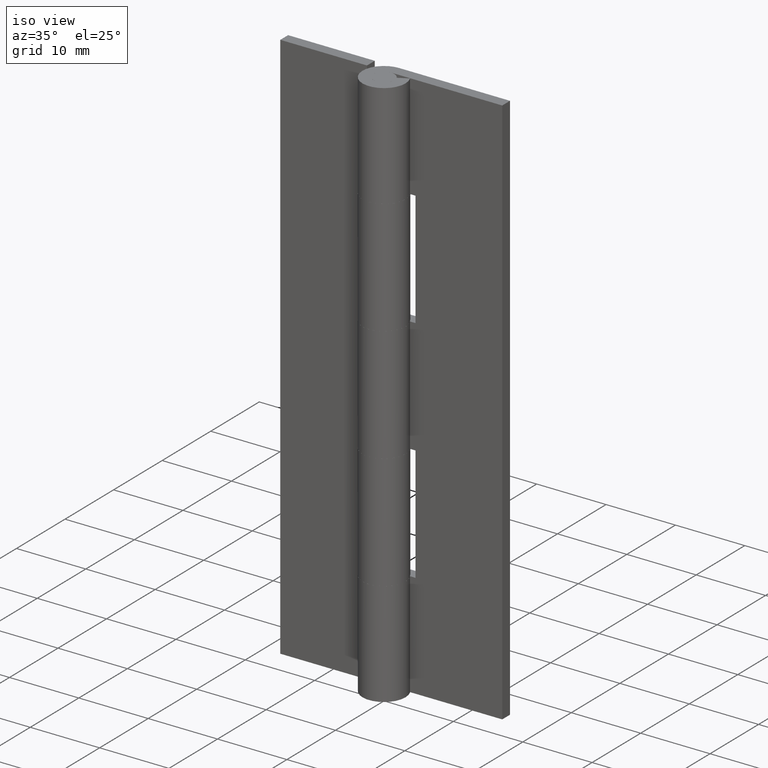
[diagram: clean part render]
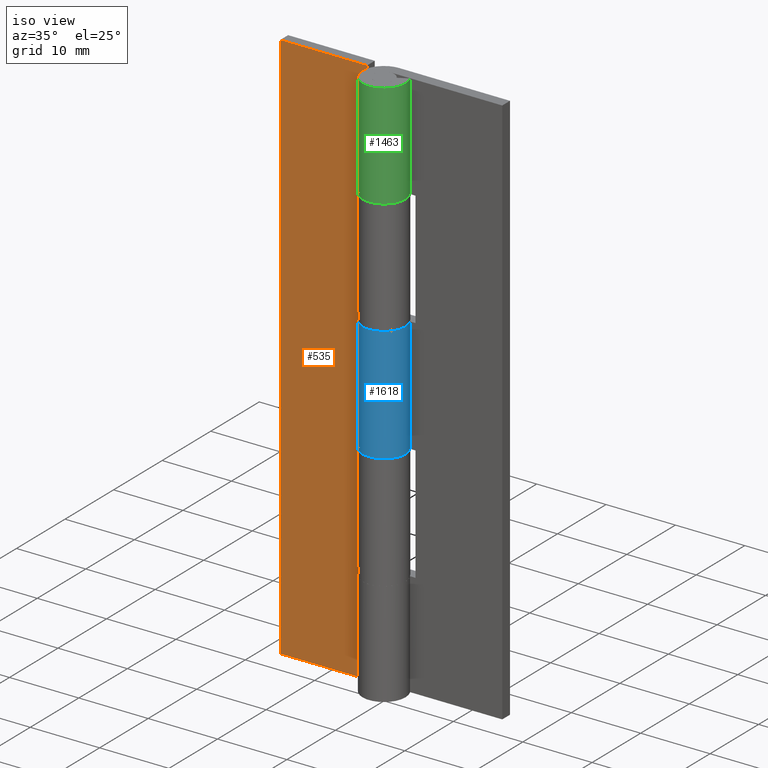
[diagram: same view with three faces highlighted in distinct colors, each labeled with its STEP entity id]
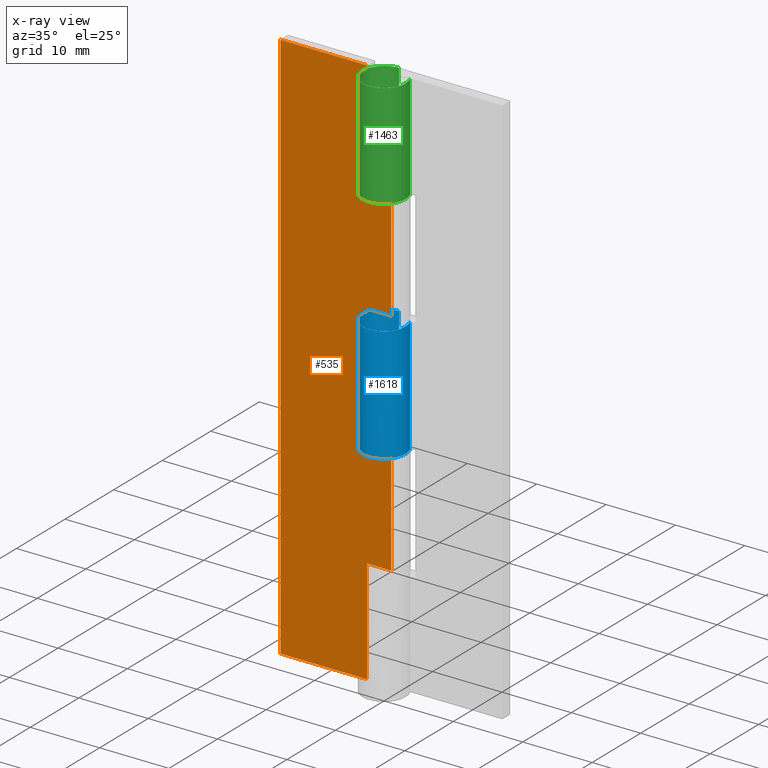
[diagram: x-ray of the same camera — body ghosted, the three highlighted faces saturated]
A machine part, iso view with three faces highlighted in distinct colors.
The next image is the same camera in x-ray (body ghosted, the three faces saturated) — at least one of them is partly hidden behind the body in this view.
Their STEP definitions:

[orange] entity #535 — the highlighted face is a freeform B-spline surface patch.
#58=CARTESIAN_POINT('',(-3.500000000000100,1.500000000000000,31.699996999999950));
#59=VERTEX_POINT('',#58);
#65=CARTESIAN_POINT('',(-1.240420E-015,1.500000000000000,31.699996999999950));
#66=VERTEX_POINT('',#65);
#67=CARTESIAN_POINT('',(-1.240420E-015,1.500000000000000,31.699996999999950));
#68=CARTESIAN_POINT('',(-3.500000000000100,1.500000000000000,31.699996999999950));
#69=QUASI_UNIFORM_CURVE('',1,(#67,#68),.UNSPECIFIED.,.F.,.U.);
#70=EDGE_CURVE('',#66,#59,#69,.T.);
#157=CARTESIAN_POINT('',(-1.240420E-015,1.500000000000000,48.300002999999798));
#158=VERTEX_POINT('',#157);
#178=CARTESIAN_POINT('',(-3.500000000000100,1.499999999999946,48.300002999999798));
#179=VERTEX_POINT('',#178);
#180=CARTESIAN_POINT('',(-3.500000000000100,1.499999999999946,48.300002999999798));
#181=CARTESIAN_POINT('',(-1.240420E-015,1.500000000000000,48.300002999999798));
#182=QUASI_UNIFORM_CURVE('',1,(#180,#181),.UNSPECIFIED.,.F.,.U.);
#183=EDGE_CURVE('',#179,#158,#182,.T.);
#212=CARTESIAN_POINT('',(-3.500000000000100,1.500000000000000,31.699996999999950));
#213=CARTESIAN_POINT('',(-3.500000000000100,1.499999999999946,48.300002999999798));
#214=QUASI_UNIFORM_CURVE('',1,(#212,#213),.UNSPECIFIED.,.F.,.U.);
#215=EDGE_CURVE('',#59,#179,#214,.T.);
#225=CARTESIAN_POINT('',(-3.500000000000100,1.500000000000000,0.0));
#226=VERTEX_POINT('',#225);
#241=CARTESIAN_POINT('',(-3.500000000000100,1.499999999999946,15.100006000000100));
#242=VERTEX_POINT('',#241);
#248=CARTESIAN_POINT('',(-3.500000000000100,1.500000000000000,0.0));
#249=CARTESIAN_POINT('',(-3.500000000000100,1.499999999999946,15.100006000000100));
#250=QUASI_UNIFORM_CURVE('',1,(#248,#249),.UNSPECIFIED.,.F.,.U.);
#251=EDGE_CURVE('',#226,#242,#250,.T.);
#291=CARTESIAN_POINT('',(-1.240420E-015,1.500000000000000,15.100006000000050));
#292=VERTEX_POINT('',#291);
#312=CARTESIAN_POINT('',(-3.500000000000100,1.499999999999946,15.100006000000100));
#313=CARTESIAN_POINT('',(-1.240420E-015,1.500000000000000,15.100006000000050));
#314=QUASI_UNIFORM_CURVE('',1,(#312,#313),.UNSPECIFIED.,.F.,.U.);
#315=EDGE_CURVE('',#242,#292,#314,.T.);
#331=CARTESIAN_POINT('',(-3.500000000000100,1.499999999999946,64.899993999999893));
#332=VERTEX_POINT('',#331);
#347=CARTESIAN_POINT('',(-3.500000000000100,1.499999999999946,80.0));
#348=VERTEX_POINT('',#347);
#354=CARTESIAN_POINT('',(-3.500000000000100,1.499999999999946,64.899993999999893));
#355=CARTESIAN_POINT('',(-3.500000000000100,1.499999999999946,80.0));
#356=QUASI_UNIFORM_CURVE('',1,(#354,#355),.UNSPECIFIED.,.F.,.U.);
#357=EDGE_CURVE('',#332,#348,#356,.T.);
#375=CARTESIAN_POINT('',(-1.240420E-015,1.500000000000000,64.899993999999893));
#376=VERTEX_POINT('',#375);
#377=CARTESIAN_POINT('',(-1.240420E-015,1.500000000000000,64.899993999999893));
#378=CARTESIAN_POINT('',(-3.500000000000100,1.499999999999946,64.899993999999893));
#379=QUASI_UNIFORM_CURVE('',1,(#377,#378),.UNSPECIFIED.,.F.,.U.);
#380=EDGE_CURVE('',#376,#332,#379,.T.);
#437=CARTESIAN_POINT('',(-16.0,1.500000000000000,80.0));
#438=VERTEX_POINT('',#437);
#439=CARTESIAN_POINT('',(-3.500000000000100,1.499999999999946,80.0));
#440=CARTESIAN_POINT('',(-16.0,1.500000000000000,80.0));
#441=QUASI_UNIFORM_CURVE('',1,(#439,#440),.UNSPECIFIED.,.F.,.U.);
#442=EDGE_CURVE('',#348,#438,#441,.T.);
#466=CARTESIAN_POINT('',(-16.0,1.500000000000000,0.0));
#467=VERTEX_POINT('',#466);
#468=CARTESIAN_POINT('',(-3.500000000000100,1.500000000000000,0.0));
#469=CARTESIAN_POINT('',(-16.0,1.500000000000000,0.0));
#470=QUASI_UNIFORM_CURVE('',1,(#468,#469),.UNSPECIFIED.,.F.,.U.);
#471=EDGE_CURVE('',#226,#467,#470,.T.);
#500=CARTESIAN_POINT('',(-16.0,1.500000000000000,0.0));
#501=CARTESIAN_POINT('',(-16.0,1.500000000000000,80.0));
#502=QUASI_UNIFORM_CURVE('',1,(#500,#501),.UNSPECIFIED.,.F.,.U.);
#503=EDGE_CURVE('',#467,#438,#502,.T.);
#508=CARTESIAN_POINT('',(-16.799199968988891,1.500000000000000,-3.995999844944478));
#509=CARTESIAN_POINT('',(-16.799199968988891,1.500000000000000,83.996001990711676));
#510=CARTESIAN_POINT('',(0.799200398142336,1.500000000000000,-3.995999844944478));
#511=CARTESIAN_POINT('',(0.799200398142336,1.500000000000000,83.996001990711676));
#512=B_SPLINE_SURFACE_WITH_KNOTS('',1,1,((#508,#510),(#509,#511)),.UNSPECIFIED.,.F.,.F.,.U.,(2,2),(2,2),(0.0,87.992001835656154),(0.0,17.598400367131230),.UNSPECIFIED.);
#513=ORIENTED_EDGE('',*,*,#215,.T.);
#514=ORIENTED_EDGE('',*,*,#183,.T.);
#515=CARTESIAN_POINT('',(-1.240420E-015,1.500000000000000,48.300002999999798));
#516=CARTESIAN_POINT('',(-1.240420E-015,1.500000000000000,64.899993999999893));
#517=QUASI_UNIFORM_CURVE('',1,(#515,#516),.UNSPECIFIED.,.F.,.U.);
#518=EDGE_CURVE('',#158,#376,#517,.T.);
#519=ORIENTED_EDGE('',*,*,#518,.T.);
#520=ORIENTED_EDGE('',*,*,#380,.T.);
#521=ORIENTED_EDGE('',*,*,#357,.T.);
#522=ORIENTED_EDGE('',*,*,#442,.T.);
#523=ORIENTED_EDGE('',*,*,#503,.F.);
#524=ORIENTED_EDGE('',*,*,#471,.F.);
#525=ORIENTED_EDGE('',*,*,#251,.T.);
#526=ORIENTED_EDGE('',*,*,#315,.T.);
#527=CARTESIAN_POINT('',(-1.240420E-015,1.500000000000000,15.100006000000050));
#528=CARTESIAN_POINT('',(-1.240420E-015,1.500000000000000,31.699996999999950));
#529=QUASI_UNIFORM_CURVE('',1,(#527,#528),.UNSPECIFIED.,.F.,.U.);
#530=EDGE_CURVE('',#292,#66,#529,.T.);
#531=ORIENTED_EDGE('',*,*,#530,.T.);
#532=ORIENTED_EDGE('',*,*,#70,.T.);
#533=EDGE_LOOP('',(#513,#514,#519,#520,#521,#522,#523,#524,#525,#526,#531,#532));
#534=FACE_OUTER_BOUND('',#533,.T.);
#535=ADVANCED_FACE('',(#534),#512,.F.);

[blue] entity #1618 — the highlighted face is a freeform B-spline surface patch.
#766=CARTESIAN_POINT('',(2.739981751764050,1.450000000000000,31.699997000000149));
#767=VERTEX_POINT('',#766);
#768=CARTESIAN_POINT('',(0.0,3.099998000000000,31.699997000000199));
#769=VERTEX_POINT('',#768);
#770=CARTESIAN_POINT('',(2.739981751764050,1.450000000000000,31.699997000000149));
#771=CARTESIAN_POINT('',(3.842027408336781,-0.632471143840419,31.699997000000121));
#772=CARTESIAN_POINT('',(2.130594885355311,-2.251790737784725,31.699997000000131));
#773=CARTESIAN_POINT('',(0.419162362373840,-3.871110331729031,31.699997000000135));
#774=CARTESIAN_POINT('',(-1.599218559171949,-2.655655344977900,31.699997000000181));
#775=CARTESIAN_POINT('',(-3.617599480717733,-1.440200358226772,31.699997000000209));
#776=CARTESIAN_POINT('',(-2.986848545660752,0.829898189834368,31.699997000000220));
#777=CARTESIAN_POINT('',(-2.356097610603769,3.099996737895513,31.699997000000231));
#778=CARTESIAN_POINT('',(0.0,3.099998000000000,31.699997000000199));
#786=(BOUNDED_CURVE()B_SPLINE_CURVE(2,(#770,#771,#772,#773,#774,#775,#776,#777,#778),.UNSPECIFIED.,.F.,.U.)B_SPLINE_CURVE_WITH_KNOTS((3,2,2,2,3),(0.0,0.250000000000000,0.500000000000000,0.750000000000000,1.0),.UNSPECIFIED.)CURVE()GEOMETRIC_REPRESENTATION_ITEM()RATIONAL_B_SPLINE_CURVE((1.0,0.796150117301084,1.0,0.796150117301084,1.0,0.796150117301084,1.0,0.796150117301084,1.0))REPRESENTATION_ITEM(''));
#787=EDGE_CURVE('',#767,#769,#786,.T.);
#789=CARTESIAN_POINT('',(0.003521362805220,3.099998000000000,31.699997000000199));
#790=VERTEX_POINT('',#789);
#791=CARTESIAN_POINT('',(0.003521362805220,3.099998000000000,31.699997000000199));
#792=CARTESIAN_POINT('',(0.0,3.099998000000000,31.699997000000199));
#793=QUASI_UNIFORM_CURVE('',1,(#791,#792),.UNSPECIFIED.,.F.,.U.);
#794=EDGE_CURVE('',#790,#769,#793,.T.);
#956=CARTESIAN_POINT('',(0.0,3.099998000000000,48.300002999999798));
#957=VERTEX_POINT('',#956);
#958=CARTESIAN_POINT('',(2.739981751764050,1.450000000000000,48.300002999999798));
#959=VERTEX_POINT('',#958);
#960=CARTESIAN_POINT('',(0.0,3.099998000000000,48.300002999999798));
#961=CARTESIAN_POINT('',(-2.356097610603767,3.099996737895512,48.300002999999805));
#962=CARTESIAN_POINT('',(-2.986848545660751,0.829898189834369,48.300002999999798));
#963=CARTESIAN_POINT('',(-3.617599480717734,-1.440200358226772,48.300002999999805));
#964=CARTESIAN_POINT('',(-1.599218559171949,-2.655655344977900,48.300002999999798));
#965=CARTESIAN_POINT('',(0.419162362373838,-3.871110331729028,48.300002999999805));
#966=CARTESIAN_POINT('',(2.130594885355307,-2.251790737784723,48.300002999999798));
#967=CARTESIAN_POINT('',(3.842027408336779,-0.632471143840418,48.300002999999805));
#968=CARTESIAN_POINT('',(2.739981751764050,1.450000000000000,48.300002999999798));
#976=(BOUNDED_CURVE()B_SPLINE_CURVE(2,(#960,#961,#962,#963,#964,#965,#966,#967,#968),.UNSPECIFIED.,.F.,.U.)B_SPLINE_CURVE_WITH_KNOTS((3,2,2,2,3),(0.0,0.250000000000000,0.500000000000000,0.750000000000000,1.0),.UNSPECIFIED.)CURVE()GEOMETRIC_REPRESENTATION_ITEM()RATIONAL_B_SPLINE_CURVE((1.0,0.796150117301085,1.0,0.796150117301085,1.0,0.796150117301085,1.0,0.796150117301085,1.0))REPRESENTATION_ITEM(''));
#977=EDGE_CURVE('',#957,#959,#976,.T.);
#1021=CARTESIAN_POINT('',(0.003521362805220,3.099998000000000,48.300002999999798));
#1022=VERTEX_POINT('',#1021);
#1028=CARTESIAN_POINT('',(0.003521362805220,3.099998000000000,48.300002999999798));
#1029=CARTESIAN_POINT('',(0.0,3.099998000000000,48.300002999999798));
#1030=QUASI_UNIFORM_CURVE('',1,(#1028,#1029),.UNSPECIFIED.,.F.,.U.);
#1031=EDGE_CURVE('',#1022,#957,#1030,.T.);
#1309=CARTESIAN_POINT('',(2.739981751764050,1.450000000000000,48.300002999999798));
#1310=CARTESIAN_POINT('',(2.739981751764050,1.450000000000000,31.699997000000149));
#1311=QUASI_UNIFORM_CURVE('',1,(#1309,#1310),.UNSPECIFIED.,.F.,.U.);
#1312=EDGE_CURVE('',#959,#767,#1311,.T.);
#1406=CARTESIAN_POINT('',(0.003521362805220,3.099998000000000,48.300002999999798));
#1407=CARTESIAN_POINT('',(0.003521362805220,3.099998000000000,31.699997000000199));
#1408=QUASI_UNIFORM_CURVE('',1,(#1406,#1407),.UNSPECIFIED.,.F.,.U.);
#1409=EDGE_CURVE('',#1022,#790,#1408,.T.);
#1588=CARTESIAN_POINT('',(0.087215809709333,3.098772886569253,48.715003149999802));
#1589=CARTESIAN_POINT('',(0.087215809709333,3.098772886569253,31.274621846250142));
#1590=CARTESIAN_POINT('',(-3.694254208917625,3.205203393624339,48.715003149999795));
#1591=CARTESIAN_POINT('',(-3.694254208917625,3.205203393624339,31.274621846250131));
#1592=CARTESIAN_POINT('',(-3.055487706738078,-0.523445196723091,48.715003149999802));
#1593=CARTESIAN_POINT('',(-3.055487706738078,-0.523445196723091,31.274621846250142));
#1594=CARTESIAN_POINT('',(-2.416721204558533,-4.252093787070521,48.715003149999795));
#1595=CARTESIAN_POINT('',(-2.416721204558533,-4.252093787070521,31.274621846250131));
#1596=CARTESIAN_POINT('',(1.113692359485487,-2.893041535896719,48.715003149999802));
#1597=CARTESIAN_POINT('',(1.113692359485487,-2.893041535896719,31.274621846250142));
#1598=CARTESIAN_POINT('',(4.644105923529505,-1.533989284722917,48.715003149999795));
#1599=CARTESIAN_POINT('',(4.644105923529505,-1.533989284722917,31.274621846250131));
#1600=CARTESIAN_POINT('',(2.617769613640667,1.660506624467241,48.715003149999802));
#1601=CARTESIAN_POINT('',(2.617769613640667,1.660506624467241,31.274621846250142));
#1609=(BOUNDED_SURFACE()B_SPLINE_SURFACE(1,2,((#1588,#1590,#1592,#1594,#1596,#1598,#1600),(#1589,#1591,#1593,#1595,#1597,#1599,#1601)),.UNSPECIFIED.,.F.,.F.,.U.)B_SPLINE_SURFACE_WITH_KNOTS((2,2),(3,2,2,3),(0.0,17.440381303749660),(0.0,5.870281529289077,11.740563058578150,17.610844587867231),.UNSPECIFIED.)GEOMETRIC_REPRESENTATION_ITEM()RATIONAL_B_SPLINE_SURFACE(((1.0,0.633830967398710,1.0,0.633830967398710,1.0,0.633830967398710,1.0),(1.0,0.633830967398710,1.0,0.633830967398710,1.0,0.633830967398710,1.0)))REPRESENTATION_ITEM('')SURFACE());
#1610=ORIENTED_EDGE('',*,*,#787,.F.);
#1611=ORIENTED_EDGE('',*,*,#1312,.F.);
#1612=ORIENTED_EDGE('',*,*,#977,.F.);
#1613=ORIENTED_EDGE('',*,*,#1031,.F.);
#1614=ORIENTED_EDGE('',*,*,#1409,.T.);
#1615=ORIENTED_EDGE('',*,*,#794,.T.);
#1616=EDGE_LOOP('',(#1610,#1611,#1612,#1613,#1614,#1615));
#1617=FACE_OUTER_BOUND('',#1616,.T.);
#1618=ADVANCED_FACE('',(#1617),#1609,.T.);

[green] entity #1463 — the highlighted face is a freeform B-spline surface patch.
#1069=CARTESIAN_POINT('',(2.739981751764050,1.450000000000000,64.899993999999893));
#1070=VERTEX_POINT('',#1069);
#1071=CARTESIAN_POINT('',(0.0,3.099998000000000,64.899993999999893));
#1072=VERTEX_POINT('',#1071);
#1073=CARTESIAN_POINT('',(2.739981751764050,1.450000000000000,64.899993999999893));
#1074=CARTESIAN_POINT('',(3.842027408336781,-0.632471143840419,64.899993999999893));
#1075=CARTESIAN_POINT('',(2.130594885355311,-2.251790737784725,64.899993999999893));
#1076=CARTESIAN_POINT('',(0.419162362373840,-3.871110331729031,64.899993999999893));
#1077=CARTESIAN_POINT('',(-1.599218559171949,-2.655655344977900,64.899993999999893));
#1078=CARTESIAN_POINT('',(-3.617599480717733,-1.440200358226772,64.899993999999893));
#1079=CARTESIAN_POINT('',(-2.986848545660752,0.829898189834368,64.899993999999893));
#1080=CARTESIAN_POINT('',(-2.356097610603769,3.099996737895513,64.899993999999893));
#1081=CARTESIAN_POINT('',(0.0,3.099998000000000,64.899993999999893));
#1089=(BOUNDED_CURVE()B_SPLINE_CURVE(2,(#1073,#1074,#1075,#1076,#1077,#1078,#1079,#1080,#1081),.UNSPECIFIED.,.F.,.U.)B_SPLINE_CURVE_WITH_KNOTS((3,2,2,2,3),(0.0,0.250000000000000,0.500000000000000,0.750000000000000,1.0),.UNSPECIFIED.)CURVE()GEOMETRIC_REPRESENTATION_ITEM()RATIONAL_B_SPLINE_CURVE((1.0,0.796150117301084,1.0,0.796150117301084,1.0,0.796150117301084,1.0,0.796150117301084,1.0))REPRESENTATION_ITEM(''));
#1090=EDGE_CURVE('',#1070,#1072,#1089,.T.);
#1092=CARTESIAN_POINT('',(0.003521362805220,3.099998000000000,64.899993999999893));
#1093=VERTEX_POINT('',#1092);
#1094=CARTESIAN_POINT('',(0.0,3.099998000000000,64.899993999999893));
#1095=CARTESIAN_POINT('',(0.003521362805220,3.099998000000000,64.899993999999893));
#1096=QUASI_UNIFORM_CURVE('',1,(#1094,#1095),.UNSPECIFIED.,.F.,.U.);
#1097=EDGE_CURVE('',#1072,#1093,#1096,.T.);
#1224=CARTESIAN_POINT('',(2.739981751764050,1.450000000000000,80.0));
#1225=VERTEX_POINT('',#1224);
#1226=CARTESIAN_POINT('',(0.003521362805220,3.099998000000000,80.0));
#1227=VERTEX_POINT('',#1226);
#1228=CARTESIAN_POINT('',(2.739981751764050,1.450000000000002,80.0));
#1229=CARTESIAN_POINT('',(3.842352259281344,-0.633086258124314,80.0));
#1230=CARTESIAN_POINT('',(2.129955333572986,-2.252396562993291,80.0));
#1231=CARTESIAN_POINT('',(0.417558407864627,-3.871706867862268,80.0));
#1232=CARTESIAN_POINT('',(-1.600726611546711,-2.654745621540072,80.0));
#1233=CARTESIAN_POINT('',(-3.619011630958046,-1.437784375217877,80.0));
#1234=CARTESIAN_POINT('',(-2.986140433580759,0.832445380150624,80.0));
#1235=CARTESIAN_POINT('',(-2.353269236203469,3.102675135519129,80.0));
#1236=CARTESIAN_POINT('',(0.003521362805217,3.099997999999999,80.0));
#1244=(BOUNDED_CURVE()B_SPLINE_CURVE(2,(#1228,#1229,#1230,#1231,#1232,#1233,#1234,#1235,#1236),.UNSPECIFIED.,.F.,.U.)B_SPLINE_CURVE_WITH_KNOTS((3,2,2,2,3),(0.0,0.250000000000000,0.500000000000000,0.750000000000000,1.0),.UNSPECIFIED.)CURVE()GEOMETRIC_REPRESENTATION_ITEM()RATIONAL_B_SPLINE_CURVE((1.0,0.796064190964140,1.0,0.796064190964140,1.0,0.796064190964140,1.0,0.796064190964140,1.0))REPRESENTATION_ITEM(''));
#1245=EDGE_CURVE('',#1225,#1227,#1244,.T.);
#1414=CARTESIAN_POINT('',(0.003521362805220,3.099998000000000,80.0));
#1415=CARTESIAN_POINT('',(0.003521362805220,3.099998000000000,64.899993999999893));
#1416=QUASI_UNIFORM_CURVE('',1,(#1414,#1415),.UNSPECIFIED.,.F.,.U.);
#1417=EDGE_CURVE('',#1227,#1093,#1416,.T.);
#1430=CARTESIAN_POINT('',(0.087215809709333,3.098772886569253,80.377500150000017));
#1431=CARTESIAN_POINT('',(0.087215809709333,3.098772886569253,64.513056346249869));
#1432=CARTESIAN_POINT('',(-3.694254208917625,3.205203393624339,80.377500150000017));
#1433=CARTESIAN_POINT('',(-3.694254208917625,3.205203393624339,64.513056346249869));
#1434=CARTESIAN_POINT('',(-3.055487706738078,-0.523445196723091,80.377500150000017));
#1435=CARTESIAN_POINT('',(-3.055487706738078,-0.523445196723091,64.513056346249869));
#1436=CARTESIAN_POINT('',(-2.416721204558533,-4.252093787070521,80.377500150000017));
#1437=CARTESIAN_POINT('',(-2.416721204558533,-4.252093787070521,64.513056346249869));
#1438=CARTESIAN_POINT('',(1.113692359485487,-2.893041535896719,80.377500150000017));
#1439=CARTESIAN_POINT('',(1.113692359485487,-2.893041535896719,64.513056346249869));
#1440=CARTESIAN_POINT('',(4.644105923529505,-1.533989284722917,80.377500150000017));
#1441=CARTESIAN_POINT('',(4.644105923529505,-1.533989284722917,64.513056346249869));
#1442=CARTESIAN_POINT('',(2.617769613640667,1.660506624467241,80.377500150000017));
#1443=CARTESIAN_POINT('',(2.617769613640667,1.660506624467241,64.513056346249869));
#1451=(BOUNDED_SURFACE()B_SPLINE_SURFACE(1,2,((#1430,#1432,#1434,#1436,#1438,#1440,#1442),(#1431,#1433,#1435,#1437,#1439,#1441,#1443)),.UNSPECIFIED.,.F.,.F.,.U.)B_SPLINE_SURFACE_WITH_KNOTS((2,2),(3,2,2,3),(0.0,15.864443803750151),(0.0,5.870281529289077,11.740563058578150,17.610844587867231),.UNSPECIFIED.)GEOMETRIC_REPRESENTATION_ITEM()RATIONAL_B_SPLINE_SURFACE(((1.0,0.633830967398710,1.0,0.633830967398710,1.0,0.633830967398710,1.0),(1.0,0.633830967398710,1.0,0.633830967398710,1.0,0.633830967398710,1.0)))REPRESENTATION_ITEM('')SURFACE());
#1452=ORIENTED_EDGE('',*,*,#1090,.F.);
#1453=CARTESIAN_POINT('',(2.739981751764050,1.450000000000000,80.0));
#1454=CARTESIAN_POINT('',(2.739981751764050,1.450000000000000,64.899993999999893));
#1455=QUASI_UNIFORM_CURVE('',1,(#1453,#1454),.UNSPECIFIED.,.F.,.U.);
#1456=EDGE_CURVE('',#1225,#1070,#1455,.T.);
#1457=ORIENTED_EDGE('',*,*,#1456,.F.);
#1458=ORIENTED_EDGE('',*,*,#1245,.T.);
#1459=ORIENTED_EDGE('',*,*,#1417,.T.);
#1460=ORIENTED_EDGE('',*,*,#1097,.F.);
#1461=EDGE_LOOP('',(#1452,#1457,#1458,#1459,#1460));
#1462=FACE_OUTER_BOUND('',#1461,.T.);
#1463=ADVANCED_FACE('',(#1462),#1451,.T.);